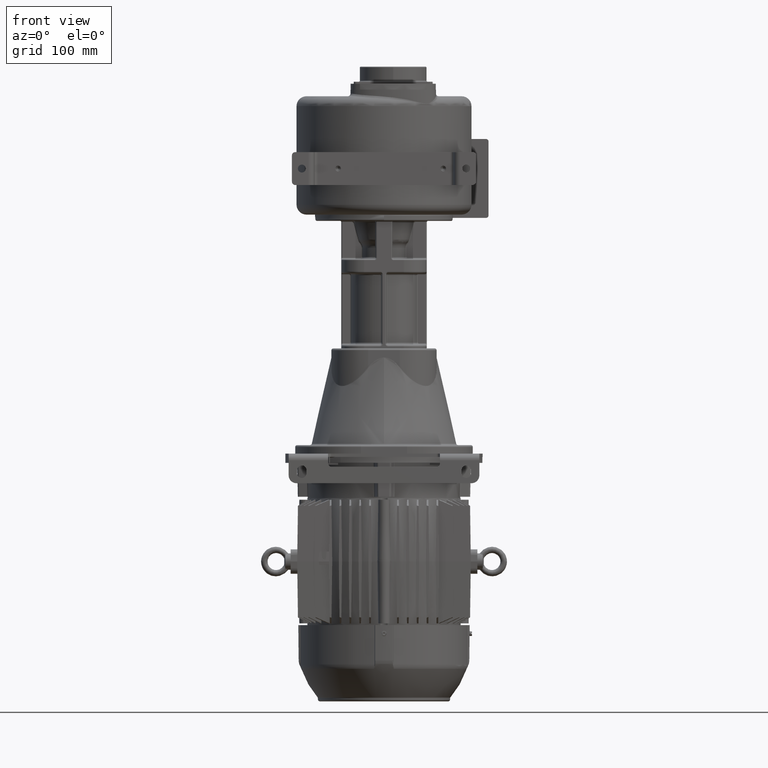
[diagram: clean part render]
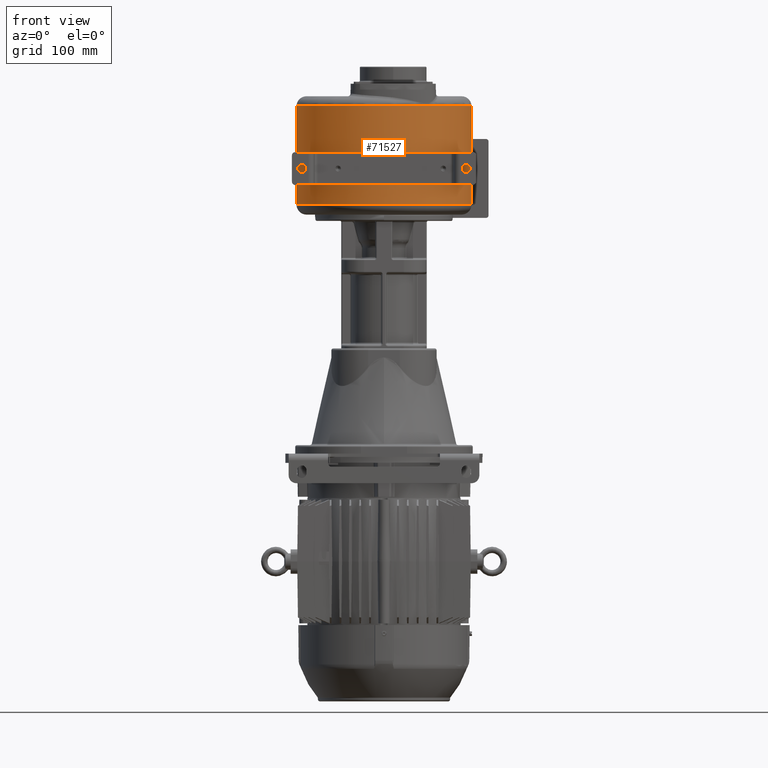
[diagram: same view with one face highlighted and labeled with its STEP entity id]
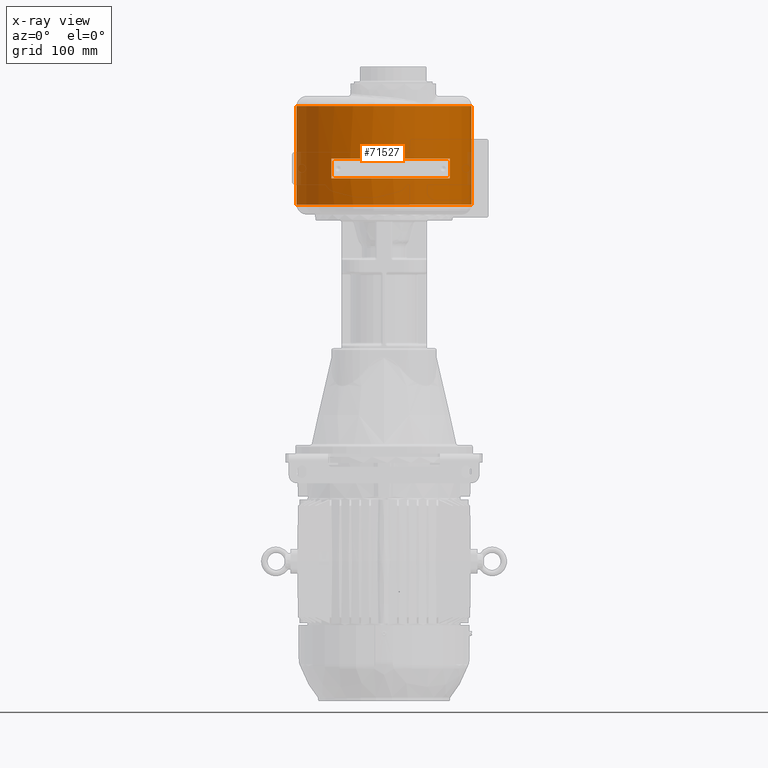
[diagram: x-ray of the same camera — body ghosted, the highlighted face saturated]
A machine part, front view. The second image highlights one B-rep face of the part: STEP entity #71527.
The next image is the same camera in x-ray: the body ghosted, the highlighted face saturated — about 2% of this face is hidden behind the body in this view.
In plain terms, the highlighted cylindrical surface (partial cylindrical patch) has radius 133 mm, axis along (0, 0, -1).
Its self-contained STEP definition (entity closure, byte-faithful):
#18107=CARTESIAN_POINT('',(0.E0,1.33E2,-5.5E1));
#18108=DIRECTION('',(0.E0,0.E0,-1.E0));
#18109=DIRECTION('',(1.E0,0.E0,0.E0));
#18110=AXIS2_PLACEMENT_3D('',#18107,#18108,#18109);
#18112=CARTESIAN_POINT('',(0.E0,1.33E2,9.5E1));
#18113=DIRECTION('',(0.E0,0.E0,1.E0));
#18114=DIRECTION('',(-1.E0,0.E0,0.E0));
#18115=AXIS2_PLACEMENT_3D('',#18112,#18113,#18114);
#18117=DIRECTION('',(0.E0,-6.385410718697E-14,1.E0));
#18118=VECTOR('',#18117,1.5E2);
#18119=CARTESIAN_POINT('',(1.33E2,1.33E2,-5.5E1));
#18120=LINE('',#18119,#18118);
#18121=DIRECTION('',(0.E0,0.E0,-1.E0));
#18122=VECTOR('',#18121,3.E1);
#18123=CARTESIAN_POINT('',(1.E2,4.531305684425E1,1.5E1));
#18124=LINE('',#18123,#18122);
#18125=CARTESIAN_POINT('',(0.E0,1.33E2,1.5E1));
#18126=DIRECTION('',(0.E0,0.E0,-1.E0));
#18127=DIRECTION('',(7.518796992481E-1,-6.593003244793E-1,0.E0));
#18128=AXIS2_PLACEMENT_3D('',#18125,#18126,#18127);
#18130=DIRECTION('',(0.E0,0.E0,-1.E0));
#18131=VECTOR('',#18130,3.E1);
#18132=CARTESIAN_POINT('',(-8.E1,2.675029411805E1,1.5E1));
#18133=LINE('',#18132,#18131);
#18134=CARTESIAN_POINT('',(0.E0,1.33E2,-1.5E1));
#18135=DIRECTION('',(0.E0,0.E0,-1.E0));
#18136=DIRECTION('',(7.518796992481E-1,-6.593003244793E-1,0.E0));
#18137=AXIS2_PLACEMENT_3D('',#18134,#18135,#18136);
#18147=DIRECTION('',(0.E0,1.191817015448E-13,1.E0));
#18148=VECTOR('',#18147,1.5E2);
#18149=CARTESIAN_POINT('',(-1.33E2,1.33E2,-5.5E1));
#18150=LINE('',#18149,#18148);
#35617=CARTESIAN_POINT('',(1.E2,4.531305684425E1,1.5E1));
#35618=CARTESIAN_POINT('',(1.E2,4.531305684425E1,-1.5E1));
#35619=VERTEX_POINT('',#35617);
#35620=VERTEX_POINT('',#35618);
#35621=CARTESIAN_POINT('',(-8.E1,2.675029411805E1,1.5E1));
#35622=VERTEX_POINT('',#35621);
#35623=CARTESIAN_POINT('',(-8.E1,2.675029411805E1,-1.5E1));
#35624=VERTEX_POINT('',#35623);
#35635=CARTESIAN_POINT('',(1.33E2,1.33E2,9.5E1));
#35636=VERTEX_POINT('',#35635);
#35637=CARTESIAN_POINT('',(-1.33E2,1.33E2,9.5E1));
#35638=VERTEX_POINT('',#35637);
#35671=CARTESIAN_POINT('',(1.33E2,1.33E2,-5.5E1));
#35672=VERTEX_POINT('',#35671);
#35675=CARTESIAN_POINT('',(-1.33E2,1.33E2,-5.5E1));
#35676=VERTEX_POINT('',#35675);
#71505=CARTESIAN_POINT('',(0.E0,1.33E2,-7.E1));
#71506=DIRECTION('',(0.E0,0.E0,-1.E0));
#71507=DIRECTION('',(-1.E0,0.E0,0.E0));
#71508=AXIS2_PLACEMENT_3D('',#71505,#71506,#71507);
#71509=CYLINDRICAL_SURFACE('',#71508,1.33E2);
#71510=ORIENTED_EDGE('',*,*,#69298,.T.);
#71512=ORIENTED_EDGE('',*,*,#71511,.T.);
#71513=ORIENTED_EDGE('',*,*,#71320,.T.);
#71514=ORIENTED_EDGE('',*,*,#71498,.F.);
#71515=EDGE_LOOP('',(#71510,#71512,#71513,#71514));
#71516=FACE_OUTER_BOUND('',#71515,.F.);
#71518=ORIENTED_EDGE('',*,*,#71517,.F.);
#71520=ORIENTED_EDGE('',*,*,#71519,.T.);
#71522=ORIENTED_EDGE('',*,*,#71521,.T.);
#71524=ORIENTED_EDGE('',*,*,#71523,.F.);
#71525=EDGE_LOOP('',(#71518,#71520,#71522,#71524));
#71526=FACE_BOUND('',#71525,.F.);
#71527=ADVANCED_FACE('',(#71516,#71526),#71509,.T.);
#18111=CIRCLE('',#18110,1.33E2);
#18116=CIRCLE('',#18115,1.33E2);
#18129=CIRCLE('',#18128,1.33E2);
#18138=CIRCLE('',#18137,1.33E2);
#69298=EDGE_CURVE('',#35672,#35676,#18111,.T.);
#71320=EDGE_CURVE('',#35638,#35636,#18116,.T.);
#71498=EDGE_CURVE('',#35672,#35636,#18120,.T.);
#71511=EDGE_CURVE('',#35676,#35638,#18150,.T.);
#71517=EDGE_CURVE('',#35619,#35620,#18124,.T.);
#71519=EDGE_CURVE('',#35619,#35622,#18129,.T.);
#71521=EDGE_CURVE('',#35622,#35624,#18133,.T.);
#71523=EDGE_CURVE('',#35620,#35624,#18138,.T.);